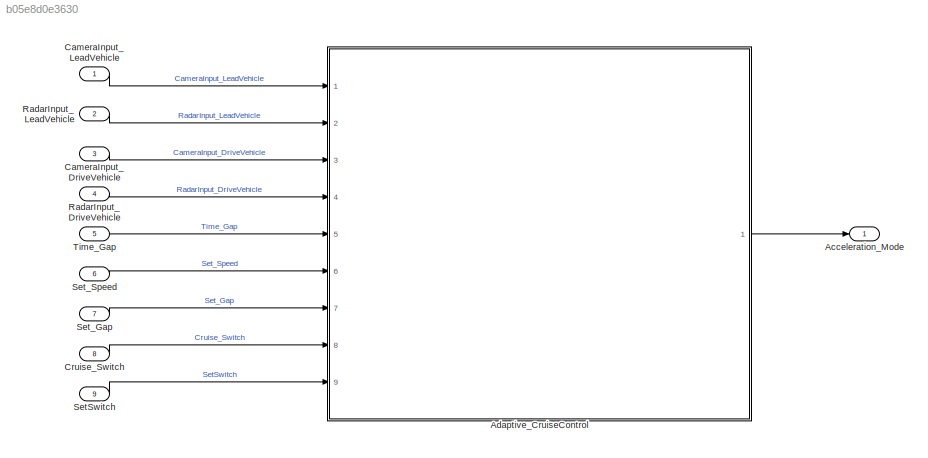
MODEL slx_b05e8d0e3630
KIND model
CONFIG AbsTol = auto
CONFIG EnableMultiTasking = off
CONFIG FixedStep = 0.01
CONFIG MaxStep = auto
CONFIG MinStep = auto
CONFIG RelTol = 1e-3
CONFIG SampleTimeConstraint = Unconstrained
CONFIG SolverName = FixedStepAuto
CONFIG StartTime = 0.0
CONFIG StopTime = inf
BLOCK [Outport] Acceleration_Mode
  OutDataTypeStr = uint8
  OutMax = 255
  OutMin = 0
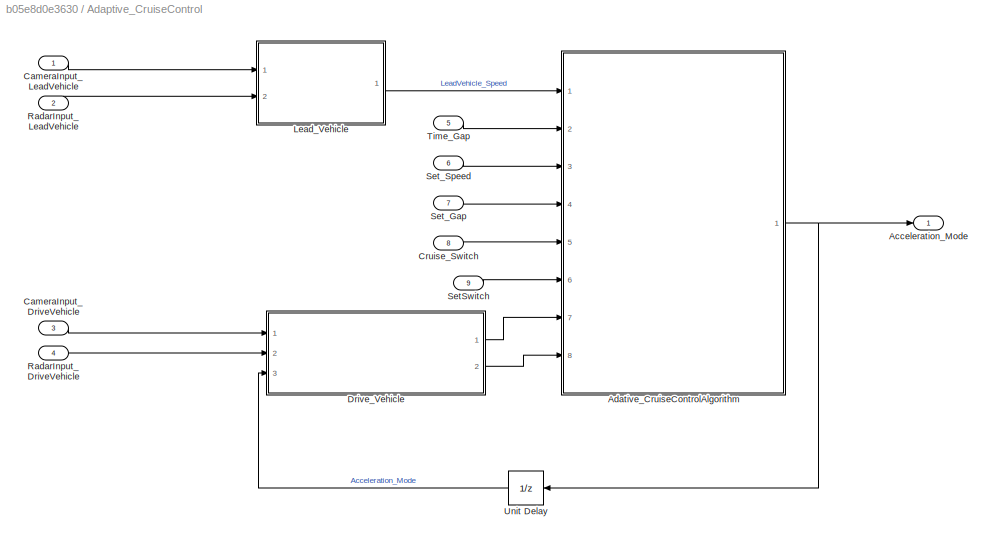
BLOCK [SubSystem] Adaptive_CruiseControl
  Ports = [9, 1]
  RequestExecContextInheritance = off
BLOCK [Outport] Adaptive_CruiseControl/Acceleration_Mode
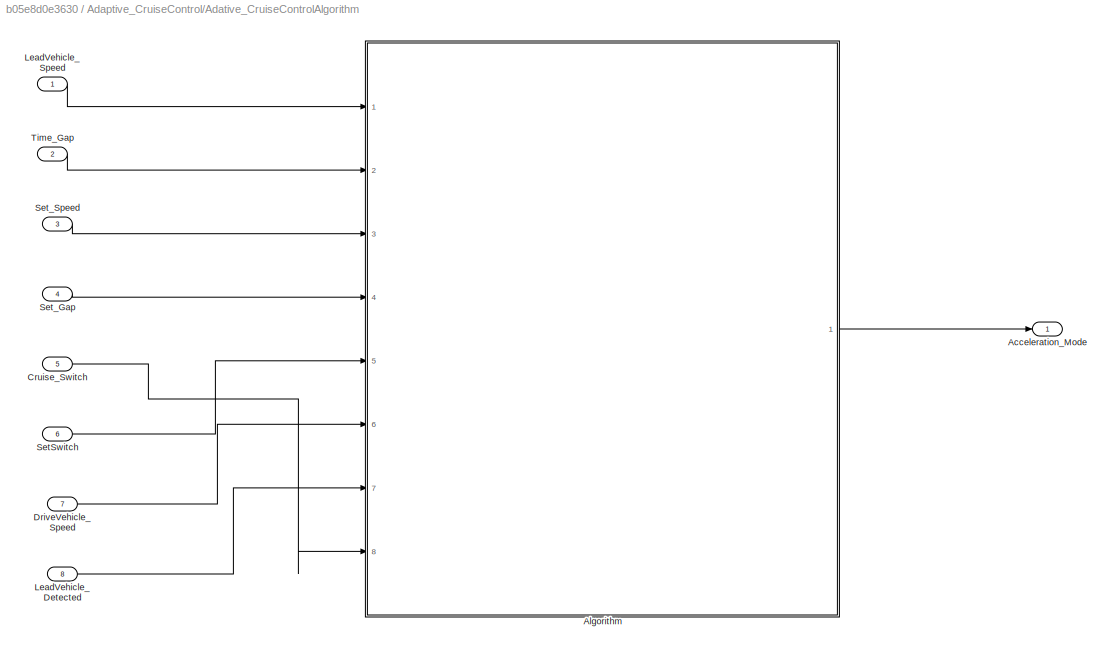
BLOCK [SubSystem] Adaptive_CruiseControl/Adative_CruiseControlAlgorithm
  Ports = [8, 1]
  RequestExecContextInheritance = off
BLOCK [Outport] Adaptive_CruiseControl/Adative_CruiseControlAlgorithm/Acceleration_Mode
  OutDataTypeStr = uint8
  OutMax = 255
  OutMin = 0
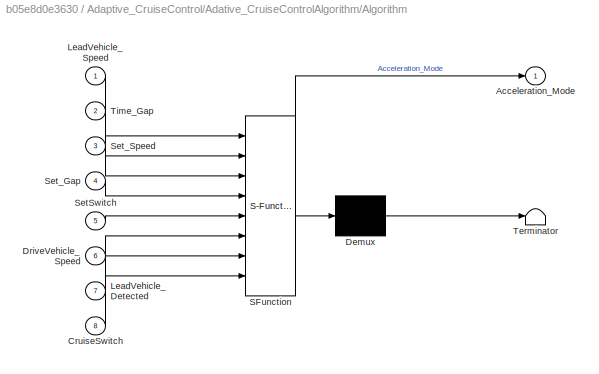
BLOCK [SubSystem] Adaptive_CruiseControl/Adative_CruiseControlAlgorithm/Algorithm
  ErrorFcn = Stateflow.Translate.translate
  PermitHierarchicalResolution = ExplicitOnly
  Ports = [8, 1]
  RequestExecContextInheritance = off
  SFBlockType = Chart
  TreatAsAtomicUnit = on
BLOCK [Demux] Adaptive_CruiseControl/Adative_CruiseControlAlgorithm/Algorithm/ Demux 
  Outputs = 1
  Ports = [1, 1]
BLOCK [S-Function] Adaptive_CruiseControl/Adative_CruiseControlAlgorithm/Algorithm/ SFunction 
  EnableBusSupport = on
  FunctionName = sf_sfun
  PortCounts = [8 2]
  Ports = [8, 2]
  SFcnIsStateOwnerBlock = off
  SFunctionDeploymentMode = off
  Tag = Stateflow S-Function 3
BLOCK [Terminator] Adaptive_CruiseControl/Adative_CruiseControlAlgorithm/Algorithm/ Terminator 
BLOCK [Outport] Adaptive_CruiseControl/Adative_CruiseControlAlgorithm/Algorithm/Acceleration_Mode
BLOCK [Inport] Adaptive_CruiseControl/Adative_CruiseControlAlgorithm/Algorithm/CruiseSwitch
  Port = 8
BLOCK [Inport] Adaptive_CruiseControl/Adative_CruiseControlAlgorithm/Algorithm/DriveVehicle_Speed
  Port = 6
BLOCK [Inport] Adaptive_CruiseControl/Adative_CruiseControlAlgorithm/Algorithm/LeadVehicle_Detected
  Port = 7
BLOCK [Inport] Adaptive_CruiseControl/Adative_CruiseControlAlgorithm/Algorithm/LeadVehicle_Speed
BLOCK [Inport] Adaptive_CruiseControl/Adative_CruiseControlAlgorithm/Algorithm/SetSwitch
  Port = 5
BLOCK [Inport] Adaptive_CruiseControl/Adative_CruiseControlAlgorithm/Algorithm/Set_Gap
  Port = 4
BLOCK [Inport] Adaptive_CruiseControl/Adative_CruiseControlAlgorithm/Algorithm/Set_Speed
  Port = 3
BLOCK [Inport] Adaptive_CruiseControl/Adative_CruiseControlAlgorithm/Algorithm/Time_Gap
  Port = 2
BLOCK [Inport] Adaptive_CruiseControl/Adative_CruiseControlAlgorithm/Cruise_Switch
  Port = 5
BLOCK [Inport] Adaptive_CruiseControl/Adative_CruiseControlAlgorithm/DriveVehicle_Speed
  Port = 7
BLOCK [Inport] Adaptive_CruiseControl/Adative_CruiseControlAlgorithm/LeadVehicle_Detected
  Port = 8
BLOCK [Inport] Adaptive_CruiseControl/Adative_CruiseControlAlgorithm/LeadVehicle_Speed
BLOCK [Inport] Adaptive_CruiseControl/Adative_CruiseControlAlgorithm/SetSwitch
  Port = 6
BLOCK [Inport] Adaptive_CruiseControl/Adative_CruiseControlAlgorithm/Set_Gap
  Port = 4
BLOCK [Inport] Adaptive_CruiseControl/Adative_CruiseControlAlgorithm/Set_Speed
  Port = 3
BLOCK [Inport] Adaptive_CruiseControl/Adative_CruiseControlAlgorithm/Time_Gap
  Port = 2
BLOCK [Inport] Adaptive_CruiseControl/CameraInput_DriveVehicle
  Port = 3
BLOCK [Inport] Adaptive_CruiseControl/CameraInput_LeadVehicle
BLOCK [Inport] Adaptive_CruiseControl/Cruise_Switch
  Port = 8
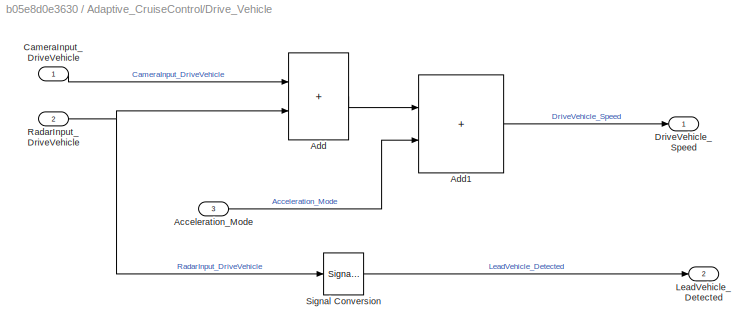
BLOCK [SubSystem] Adaptive_CruiseControl/Drive_Vehicle
  Ports = [3, 2]
  RequestExecContextInheritance = off
BLOCK [Inport] Adaptive_CruiseControl/Drive_Vehicle/Acceleration_Mode
  Port = 3
BLOCK [Sum] Adaptive_CruiseControl/Drive_Vehicle/Add
  IconShape = rectangular
  Ports = [2, 1]
BLOCK [Sum] Adaptive_CruiseControl/Drive_Vehicle/Add1
  IconShape = rectangular
  Ports = [2, 1]
BLOCK [Inport] Adaptive_CruiseControl/Drive_Vehicle/CameraInput_DriveVehicle
BLOCK [Outport] Adaptive_CruiseControl/Drive_Vehicle/DriveVehicle_Speed
BLOCK [Outport] Adaptive_CruiseControl/Drive_Vehicle/LeadVehicle_Detected
  Port = 2
BLOCK [Inport] Adaptive_CruiseControl/Drive_Vehicle/RadarInput_DriveVehicle
  Port = 2
BLOCK [SignalConversion] Adaptive_CruiseControl/Drive_Vehicle/Signal Conversion
  OverrideOpt = off
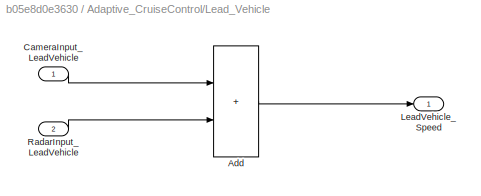
BLOCK [SubSystem] Adaptive_CruiseControl/Lead_Vehicle
  Ports = [2, 1]
  RequestExecContextInheritance = off
BLOCK [Sum] Adaptive_CruiseControl/Lead_Vehicle/Add
  IconShape = rectangular
  Ports = [2, 1]
BLOCK [Inport] Adaptive_CruiseControl/Lead_Vehicle/CameraInput_LeadVehicle
BLOCK [Outport] Adaptive_CruiseControl/Lead_Vehicle/LeadVehicle_Speed
BLOCK [Inport] Adaptive_CruiseControl/Lead_Vehicle/RadarInput_LeadVehicle
  Port = 2
BLOCK [Inport] Adaptive_CruiseControl/RadarInput_DriveVehicle
  Port = 4
BLOCK [Inport] Adaptive_CruiseControl/RadarInput_LeadVehicle
  Port = 2
BLOCK [Inport] Adaptive_CruiseControl/SetSwitch
  Port = 9
BLOCK [Inport] Adaptive_CruiseControl/Set_Gap
  Port = 7
BLOCK [Inport] Adaptive_CruiseControl/Set_Speed
  Port = 6
BLOCK [Inport] Adaptive_CruiseControl/Time_Gap
  Port = 5
BLOCK [UnitDelay] Adaptive_CruiseControl/Unit Delay
  HasFrameUpgradeWarning = on
  SampleTime = -1
BLOCK [Inport] CameraInput_DriveVehicle
  OutDataTypeStr = uint8
  OutMax = 255
  OutMin = 0
  Port = 3
BLOCK [Inport] CameraInput_LeadVehicle
  OutDataTypeStr = uint8
  OutMax = 255
  OutMin = 0
BLOCK [Inport] Cruise_Switch
  OutDataTypeStr = boolean
  OutMax = 1
  OutMin = 0
  Port = 8
BLOCK [Inport] RadarInput_DriveVehicle
  OutDataTypeStr = uint8
  OutMax = 255
  OutMin = 0
  Port = 4
BLOCK [Inport] RadarInput_LeadVehicle
  OutDataTypeStr = uint8
  OutMax = 255
  OutMin = 0
  Port = 2
BLOCK [Inport] SetSwitch
  OutDataTypeStr = boolean
  OutMax = 1
  OutMin = 0
  Port = 9
BLOCK [Inport] Set_Gap
  OutDataTypeStr = uint8
  OutMax = 255
  OutMin = 0
  Port = 7
BLOCK [Inport] Set_Speed
  OutDataTypeStr = uint8
  OutMax = 255
  OutMin = 0
  Port = 6
BLOCK [Inport] Time_Gap
  OutDataTypeStr = uint8
  OutMax = 255
  OutMin = 0
  Port = 5
LINE Adaptive_CruiseControl/Adative_CruiseControlAlgorithm/Algorithm:1 -> Adaptive_CruiseControl/Adative_CruiseControlAlgorithm/Acceleration_Mode:1
LINE Adaptive_CruiseControl/Adative_CruiseControlAlgorithm/Cruise_Switch:1 -> Adaptive_CruiseControl/Adative_CruiseControlAlgorithm/Algorithm:8
LINE Adaptive_CruiseControl/Adative_CruiseControlAlgorithm/DriveVehicle_Speed:1 -> Adaptive_CruiseControl/Adative_CruiseControlAlgorithm/Algorithm:6
LINE Adaptive_CruiseControl/Adative_CruiseControlAlgorithm/LeadVehicle_Detected:1 -> Adaptive_CruiseControl/Adative_CruiseControlAlgorithm/Algorithm:7
LINE Adaptive_CruiseControl/Adative_CruiseControlAlgorithm/LeadVehicle_Speed:1 -> Adaptive_CruiseControl/Adative_CruiseControlAlgorithm/Algorithm:1
LINE Adaptive_CruiseControl/Adative_CruiseControlAlgorithm/SetSwitch:1 -> Adaptive_CruiseControl/Adative_CruiseControlAlgorithm/Algorithm:5
LINE Adaptive_CruiseControl/Adative_CruiseControlAlgorithm/Set_Gap:1 -> Adaptive_CruiseControl/Adative_CruiseControlAlgorithm/Algorithm:4
LINE Adaptive_CruiseControl/Adative_CruiseControlAlgorithm/Set_Speed:1 -> Adaptive_CruiseControl/Adative_CruiseControlAlgorithm/Algorithm:3
LINE Adaptive_CruiseControl/Adative_CruiseControlAlgorithm/Time_Gap:1 -> Adaptive_CruiseControl/Adative_CruiseControlAlgorithm/Algorithm:2
NET Adaptive_CruiseControl/Adative_CruiseControlAlgorithm:1 -> Adaptive_CruiseControl/Acceleration_Mode:1, Adaptive_CruiseControl/Unit Delay:1
LINE Adaptive_CruiseControl/CameraInput_DriveVehicle:1 -> Adaptive_CruiseControl/Drive_Vehicle:1
LINE Adaptive_CruiseControl/CameraInput_LeadVehicle:1 -> Adaptive_CruiseControl/Lead_Vehicle:1
LINE Adaptive_CruiseControl/Cruise_Switch:1 -> Adaptive_CruiseControl/Adative_CruiseControlAlgorithm:5
LINE Adaptive_CruiseControl/Drive_Vehicle/Acceleration_Mode:1 -> Adaptive_CruiseControl/Drive_Vehicle/Add1:2
LINE Adaptive_CruiseControl/Drive_Vehicle/Add1:1 -> Adaptive_CruiseControl/Drive_Vehicle/DriveVehicle_Speed:1
LINE Adaptive_CruiseControl/Drive_Vehicle/Add:1 -> Adaptive_CruiseControl/Drive_Vehicle/Add1:1
LINE Adaptive_CruiseControl/Drive_Vehicle/CameraInput_DriveVehicle:1 -> Adaptive_CruiseControl/Drive_Vehicle/Add:1
NET Adaptive_CruiseControl/Drive_Vehicle/RadarInput_DriveVehicle:1 -> Adaptive_CruiseControl/Drive_Vehicle/Add:2, Adaptive_CruiseControl/Drive_Vehicle/Signal Conversion:1
LINE Adaptive_CruiseControl/Drive_Vehicle/Signal Conversion:1 -> Adaptive_CruiseControl/Drive_Vehicle/LeadVehicle_Detected:1
LINE Adaptive_CruiseControl/Drive_Vehicle:1 -> Adaptive_CruiseControl/Adative_CruiseControlAlgorithm:7
LINE Adaptive_CruiseControl/Drive_Vehicle:2 -> Adaptive_CruiseControl/Adative_CruiseControlAlgorithm:8
LINE Adaptive_CruiseControl/Lead_Vehicle/Add:1 -> Adaptive_CruiseControl/Lead_Vehicle/LeadVehicle_Speed:1
LINE Adaptive_CruiseControl/Lead_Vehicle/CameraInput_LeadVehicle:1 -> Adaptive_CruiseControl/Lead_Vehicle/Add:1
LINE Adaptive_CruiseControl/Lead_Vehicle/RadarInput_LeadVehicle:1 -> Adaptive_CruiseControl/Lead_Vehicle/Add:2
LINE Adaptive_CruiseControl/Lead_Vehicle:1 -> Adaptive_CruiseControl/Adative_CruiseControlAlgorithm:1
LINE Adaptive_CruiseControl/RadarInput_DriveVehicle:1 -> Adaptive_CruiseControl/Drive_Vehicle:2
LINE Adaptive_CruiseControl/RadarInput_LeadVehicle:1 -> Adaptive_CruiseControl/Lead_Vehicle:2
LINE Adaptive_CruiseControl/SetSwitch:1 -> Adaptive_CruiseControl/Adative_CruiseControlAlgorithm:6
LINE Adaptive_CruiseControl/Set_Gap:1 -> Adaptive_CruiseControl/Adative_CruiseControlAlgorithm:4
LINE Adaptive_CruiseControl/Set_Speed:1 -> Adaptive_CruiseControl/Adative_CruiseControlAlgorithm:3
LINE Adaptive_CruiseControl/Time_Gap:1 -> Adaptive_CruiseControl/Adative_CruiseControlAlgorithm:2
LINE Adaptive_CruiseControl/Unit Delay:1 -> Adaptive_CruiseControl/Drive_Vehicle:3
LINE Adaptive_CruiseControl:1 -> Acceleration_Mode:1
LINE CameraInput_DriveVehicle:1 -> Adaptive_CruiseControl:3
LINE CameraInput_LeadVehicle:1 -> Adaptive_CruiseControl:1
LINE Cruise_Switch:1 -> Adaptive_CruiseControl:8
LINE RadarInput_DriveVehicle:1 -> Adaptive_CruiseControl:4
LINE RadarInput_LeadVehicle:1 -> Adaptive_CruiseControl:2
LINE SetSwitch:1 -> Adaptive_CruiseControl:9
LINE Set_Gap:1 -> Adaptive_CruiseControl:7
LINE Set_Speed:1 -> Adaptive_CruiseControl:6
LINE Time_Gap:1 -> Adaptive_CruiseControl:5
note: NET lines group one-source signal fan-out (src -> all destinations, sorted); 1:1 wires keep LINE
CHART Adaptive_CruiseControl/Adative_CruiseControlAlgorithm/Algorithm states=9 transitions=17
  STATE_LABEL 'ACC_OFF_MODE\nentry:\nAcceleration_Mode == 0;\n'
  STATE_LABEL 'ACC_STANDBY_MODE\nentry:\nAcceleration_Mode == 1;\n'
  STATE_LABEL 'ACC_ON_MODE'
  STATE_LABEL 'LeadVehicle_Detected_Follow\nentry:\nAcceleration_Mode == 2;'
  STATE_LABEL 'LeadVehicle_Detected_Resume\nentry:\nAcceleration_Mode == 3;'
  STATE_LABEL 'LeadVehicle_Not_Detected_Resume\nentry:\nAcceleration_Mode == 1;'
  STATE_LABEL 'LeadVehicle_Not_Detected\nentry:\nAcceleration_Mode == 1;'
  STATE_LABEL 'LeadVehicle_Speed_lessthan_Set_Speed\nentry:\nAcceleration_Mode == 4;'
  STATE_LABEL 'LeadVehicle_Speed_equal_Set_Speed\nentry:\nAcceleration_Mode == 5;'
  STATE_LABEL '[(DriveVehicle_Speed == Set_Speed) &&...\n(LeadVehicle_Speed >= Set_Speed) &&...\n(Time_Gap >= Set_Gap)]'
  STATE_LABEL '[LeadVehicle_Detected == 0]'
  STATE_LABEL '[LeadVehicle_Detected == 0]'
  STATE_LABEL '[(LeadVehicle_Detected == 1) &&...\n(DriveVehicle_Speed == Set_Speed) &&...\n(LeadVehicle_Speed >= Set_Speed) &&...\n(Time_Gap >= Set_Gap)]'
  STATE_LABEL '[(LeadVehicle_Detected==0)||...\n(DriveVehicle_Speed<=Set_Speed)]'
  STATE_LABEL '[(DriveVehicle_Speed < Set_Speed) &&...\n(LeadVehicle_Speed > DriveVehicle_Speed) &&...\n(Time_Gap >= Set_Gap)]'
  STATE_LABEL '[(DriveVehicle_Speed < Set_Speed) &&...\n(LeadVehicle_Speed > DriveVehicle_Speed)||...\n(Time_Gap >= Set_Gap)]'
  STATE_LABEL '[(LeadVehicle_Detected == 1) &&...\n(LeadVehicle_Speed < Set_Speed)||...\n(Time_Gap < Set_Gap)]'
  STATE_LABEL '[(LeadVehicle_Detected == 0) &&...\n(DriveVehicle_Speed == Set_Speed)]'
  STATE_LABEL '[((LeadVehicle_Speed*1.25 >= DriveVehicle_Speed) &&...\n(LeadVehicle_Speed*0.75 <= DriveVehicle_Speed)) &&...\n(DriveVehicle_Speed < Set_Speed) &&...\n((Time_Gap <= 1.25*Set_Gap) &&...\n(Time_Gap <= 0.75*Set_Gap))]'
  STATE_LABEL '[(LeadVehicle_Speed < Set_Speed) &&...\n(LeadVehicle_Speed < DriveVehicle_Speed)||...\n(Time_Gap == 0.75*Set_Gap)]'
  STATE_LABEL 'LeadVehicle_Detected_Follow\nentry:\nAcceleration_Mode == 2;'
  STATE_LABEL 'LeadVehicle_Detected_Resume\nentry:\nAcceleration_Mode == 3;'
  STATE_LABEL 'LeadVehicle_Not_Detected_Resume\nentry:\nAcceleration_Mode == 1;'
  STATE_LABEL 'LeadVehicle_Not_Detected\nentry:\nAcceleration_Mode == 1;'
  STATE_LABEL 'LeadVehicle_Speed_lessthan_Set_Speed\nentry:\nAcceleration_Mode == 4;'
  STATE_LABEL 'LeadVehicle_Speed_equal_Set_Speed\nentry:\nAcceleration_Mode == 5;'
CHART  states=0 transitions=0
